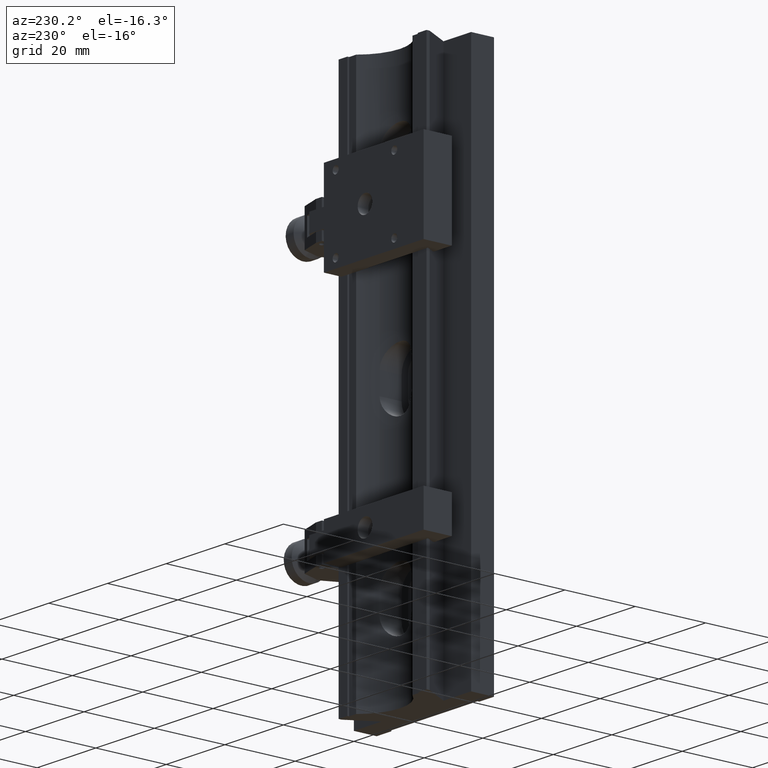
[diagram: clean part render]
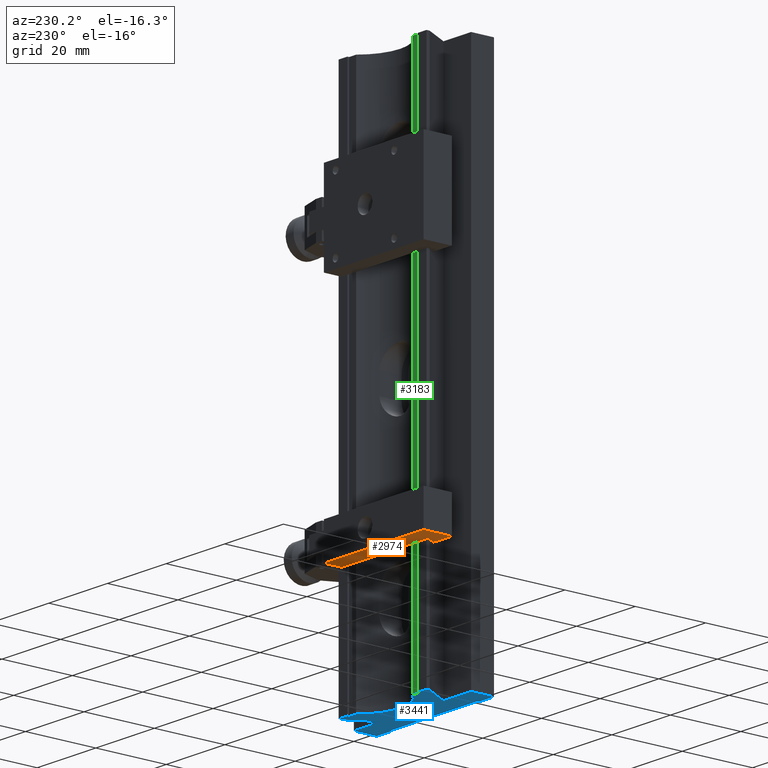
[diagram: same view with three faces highlighted in distinct colors, each labeled with its STEP entity id]
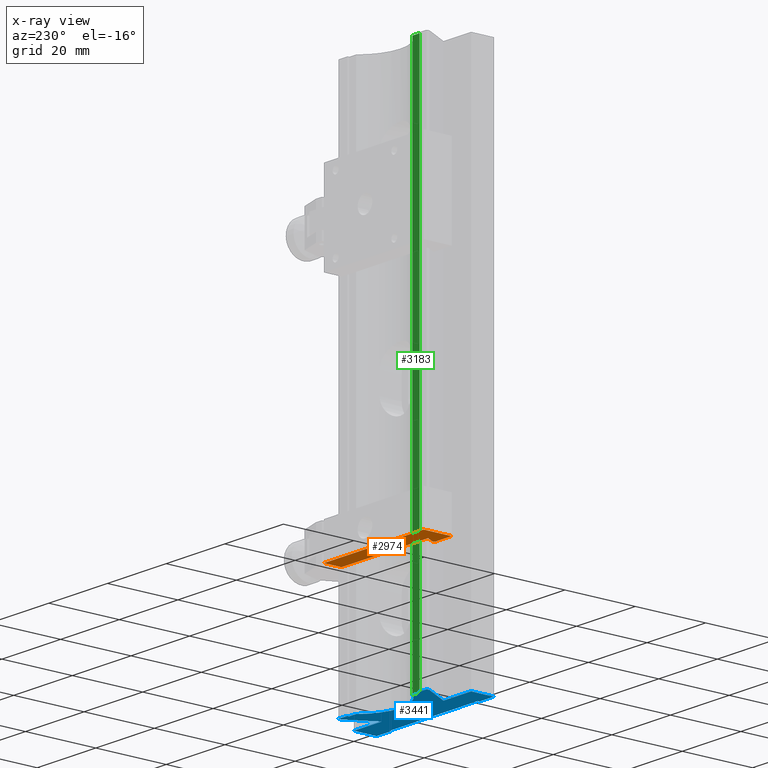
[diagram: x-ray of the same camera — body ghosted, the three highlighted faces saturated]
A machine part, auxiliary view with three faces highlighted in distinct colors.
The next image is the same camera in x-ray (body ghosted, the three faces saturated) — at least one of them is partly hidden behind the body in this view.
Their STEP definitions:

[orange] entity #2974 — the highlighted planar face has unit normal (-0, 0, 1).
#76 = CARTESIAN_POINT ( 'NONE',  ( -13.95096189432331890, 5.816987298107782145, -40.72750728490122896 ) ) ;
#150 = CARTESIAN_POINT ( 'NONE',  ( 14.00000000000000711, 13.50000000000000888, -40.72750728490122896 ) ) ;
#168 = AXIS2_PLACEMENT_3D ( 'NONE', #332, #267, #4722 ) ;
#267 = DIRECTION ( 'NONE',  ( -0.000000000000000000, 0.000000000000000000, 1.000000000000000000 ) ) ;
#332 = CARTESIAN_POINT ( 'NONE',  ( 3.469446951953614189E-15, 8.500000000000007105, -40.72750728490122896 ) ) ;
#451 = ORIENTED_EDGE ( 'NONE', *, *, #1555, .F. ) ;
#488 = CARTESIAN_POINT ( 'NONE',  ( -14.26794919243109483, 5.500000000000007105, -40.72750728490122896 ) ) ;
#491 = LINE ( 'NONE', #1761, #2238 ) ;
#680 = LINE ( 'NONE', #4084, #2462 ) ;
#711 = CARTESIAN_POINT ( 'NONE',  ( 14.00000000000000888, 8.500000000000007105, -40.72750728490122896 ) ) ;
#853 = ORIENTED_EDGE ( 'NONE', *, *, #3116, .T. ) ;
#893 = CARTESIAN_POINT ( 'NONE',  ( -20.00000000000000711, 5.500000000000007105, -40.72750728490122896 ) ) ;
#994 = LINE ( 'NONE', #1785, #3203 ) ;
#1056 = VERTEX_POINT ( 'NONE', #488 ) ;
#1063 = EDGE_CURVE ( 'NONE', #2368, #1427, #994, .T. ) ;
#1175 = DIRECTION ( 'NONE',  ( 1.000000000000000000, 1.242535447991765058E-32, 0.000000000000000000 ) ) ;
#1178 = ORIENTED_EDGE ( 'NONE', *, *, #4320, .F. ) ;
#1248 = ORIENTED_EDGE ( 'NONE', *, *, #3153, .F. ) ;
#1322 = DIRECTION ( 'NONE',  ( -0.5000000000000041078, 0.8660254037844363761, 0.000000000000000000 ) ) ;
#1351 = EDGE_LOOP ( 'NONE', ( #3448, #4074, #451, #853, #1178, #1248, #1641 ) ) ;
#1404 = EDGE_CURVE ( 'NONE', #2557, #1877, #4339, .T. ) ;
#1427 = VERTEX_POINT ( 'NONE', #3793 ) ;
#1453 = VECTOR ( 'NONE', #4205, 1000.000000000000114 ) ;
#1555 = EDGE_CURVE ( 'NONE', #3657, #2557, #491, .T. ) ;
#1576 = VECTOR ( 'NONE', #4330, 1000.000000000000000 ) ;
#1635 = LINE ( 'NONE', #2944, #1453 ) ;
#1638 = VERTEX_POINT ( 'NONE', #893 ) ;
#1641 = ORIENTED_EDGE ( 'NONE', *, *, #1063, .F. ) ;
#1737 = EDGE_CURVE ( 'NONE', #2368, #1877, #4963, .T. ) ;
#1761 = CARTESIAN_POINT ( 'NONE',  ( -13.76794919243110016, 5.500000000000007105, -40.72750728490122896 ) ) ;
#1785 = CARTESIAN_POINT ( 'NONE',  ( -20.00000000000000711, 13.50000000000000888, -40.72750728490122896 ) ) ;
#1877 = VERTEX_POINT ( 'NONE', #711 ) ;
#2121 = LINE ( 'NONE', #4699, #1576 ) ;
#2238 = VECTOR ( 'NONE', #1322, 1000.000000000000000 ) ;
#2249 = VECTOR ( 'NONE', #3633, 1000.000000000000000 ) ;
#2368 = VERTEX_POINT ( 'NONE', #4482 ) ;
#2462 = VECTOR ( 'NONE', #3648, 1000.000000000000000 ) ;
#2510 = VECTOR ( 'NONE', #1175, 1000.000000000000000 ) ;
#2557 = VERTEX_POINT ( 'NONE', #4370 ) ;
#2944 = CARTESIAN_POINT ( 'NONE',  ( -13.95096189432331890, 5.816987298107783033, -40.72750728490122896 ) ) ;
#2974 = ADVANCED_FACE ( 'NONE', ( #2992 ), #5552, .F. ) ;
#2992 = FACE_OUTER_BOUND ( 'NONE', #1351, .T. ) ;
#3116 = EDGE_CURVE ( 'NONE', #3657, #1056, #1635, .T. ) ;
#3153 = EDGE_CURVE ( 'NONE', #1427, #1638, #680, .T. ) ;
#3203 = VECTOR ( 'NONE', #4469, 1000.000000000000000 ) ;
#3448 = ORIENTED_EDGE ( 'NONE', *, *, #1737, .T. ) ;
#3633 = DIRECTION ( 'NONE',  ( 1.170338304741205908E-16, -1.000000000000000000, 0.000000000000000000 ) ) ;
#3648 = DIRECTION ( 'NONE',  ( 0.000000000000000000, -1.000000000000000000, 0.000000000000000000 ) ) ;
#3657 = VERTEX_POINT ( 'NONE', #76 ) ;
#3793 = CARTESIAN_POINT ( 'NONE',  ( -20.00000000000000711, 13.50000000000000888, -40.72750728490122896 ) ) ;
#4074 = ORIENTED_EDGE ( 'NONE', *, *, #1404, .F. ) ;
#4084 = CARTESIAN_POINT ( 'NONE',  ( -20.00000000000000711, 13.50000000000000888, -40.72750728490122896 ) ) ;
#4205 = DIRECTION ( 'NONE',  ( -0.7071067811865474617, -0.7071067811865474617, -0.000000000000000000 ) ) ;
#4320 = EDGE_CURVE ( 'NONE', #1638, #1056, #2121, .T. ) ;
#4330 = DIRECTION ( 'NONE',  ( 1.000000000000000000, 0.000000000000000000, 0.000000000000000000 ) ) ;
#4339 = LINE ( 'NONE', #5137, #2510 ) ;
#4370 = CARTESIAN_POINT ( 'NONE',  ( -15.49999999999999645, 8.500000000000007105, -40.72750728490122896 ) ) ;
#4469 = DIRECTION ( 'NONE',  ( -1.000000000000000000, -0.000000000000000000, -0.000000000000000000 ) ) ;
#4482 = CARTESIAN_POINT ( 'NONE',  ( 14.00000000000000711, 13.50000000000000888, -40.72750728490122896 ) ) ;
#4699 = CARTESIAN_POINT ( 'NONE',  ( -20.00000000000000711, 5.500000000000007105, -40.72750728490122896 ) ) ;
#4722 = DIRECTION ( 'NONE',  ( 1.000000000000000000, 0.000000000000000000, 0.000000000000000000 ) ) ;
#4963 = LINE ( 'NONE', #150, #2249 ) ;
#5137 = CARTESIAN_POINT ( 'NONE',  ( -15.49999999999999645, 8.500000000000007105, -40.72750728490122896 ) ) ;
#5552 = PLANE ( 'NONE',  #168 ) ;

[blue] entity #3441 — the highlighted planar face has unit normal (0, 0, 1).
#25 = EDGE_CURVE ( 'NONE', #3292, #1034, #1446, .T. ) ;
#33 = VERTEX_POINT ( 'NONE', #1018 ) ;
#52 = VECTOR ( 'NONE', #3385, 1000.000000000000000 ) ;
#105 = VECTOR ( 'NONE', #1817, 1000.000000000000000 ) ;
#136 = CARTESIAN_POINT ( 'NONE',  ( -14.99999999999999822, 7.633974596215571395, -75.00000000000002842 ) ) ;
#149 = VERTEX_POINT ( 'NONE', #3027 ) ;
#154 = EDGE_CURVE ( 'NONE', #1066, #4923, #5124, .T. ) ;
#272 = AXIS2_PLACEMENT_3D ( 'NONE', #3890, #5639, #5236 ) ;
#299 = DIRECTION ( 'NONE',  ( 1.000000000000000000, 1.301042606982605321E-16, 0.000000000000000000 ) ) ;
#311 = DIRECTION ( 'NONE',  ( -1.000000000000000000, -1.445602896647339163E-16, 0.000000000000000000 ) ) ;
#336 = ORIENTED_EDGE ( 'NONE', *, *, #2422, .F. ) ;
#353 = EDGE_CURVE ( 'NONE', #3270, #4202, #1788, .T. ) ;
#381 = CARTESIAN_POINT ( 'NONE',  ( -20.00000000000000000, -0.000000000000000000, -75.00000000000000000 ) ) ;
#432 = ORIENTED_EDGE ( 'NONE', *, *, #3925, .F. ) ;
#467 = EDGE_CURVE ( 'NONE', #3798, #4281, #2763, .T. ) ;
#485 = VERTEX_POINT ( 'NONE', #1385 ) ;
#584 = VECTOR ( 'NONE', #3562, 1000.000000000000000 ) ;
#672 = DIRECTION ( 'NONE',  ( 0.000000000000000000, 1.000000000000000000, 0.000000000000000000 ) ) ;
#679 = VECTOR ( 'NONE', #4019, 1000.000000000000000 ) ;
#716 = CARTESIAN_POINT ( 'NONE',  ( 9.157674552523589243E-16, 8.000000000000000000, -75.00000000000000000 ) ) ;
#763 = DIRECTION ( 'NONE',  ( 1.000000000000000000, 0.000000000000000000, 0.000000000000000000 ) ) ;
#855 = CARTESIAN_POINT ( 'NONE',  ( -2.407148620655123076E-16, 16.00000000000000000, -75.00000000000000000 ) ) ;
#862 = VERTEX_POINT ( 'NONE', #1460 ) ;
#927 = ORIENTED_EDGE ( 'NONE', *, *, #2834, .F. ) ;
#941 = ORIENTED_EDGE ( 'NONE', *, *, #5118, .F. ) ;
#993 = ORIENTED_EDGE ( 'NONE', *, *, #154, .F. ) ;
#1018 = CARTESIAN_POINT ( 'NONE',  ( 14.99999999999999822, 8.500000000000003553, -75.00000000000002842 ) ) ;
#1034 = VERTEX_POINT ( 'NONE', #4736 ) ;
#1044 = CARTESIAN_POINT ( 'NONE',  ( 15.00000000000000711, 16.00000000000000000, -75.00000000000000000 ) ) ;
#1060 = VERTEX_POINT ( 'NONE', #4925 ) ;
#1066 = VERTEX_POINT ( 'NONE', #4414 ) ;
#1100 = LINE ( 'NONE', #1044, #3496 ) ;
#1106 = VECTOR ( 'NONE', #299, 1000.000000000000000 ) ;
#1148 = CARTESIAN_POINT ( 'NONE',  ( 15.00000000000000000, 14.43276648600719270, -75.00000000000002842 ) ) ;
#1214 = CARTESIAN_POINT ( 'NONE',  ( -15.00000000000000000, 14.43276648600719270, -75.00000000000002842 ) ) ;
#1216 = LINE ( 'NONE', #2966, #1938 ) ;
#1218 = ORIENTED_EDGE ( 'NONE', *, *, #3824, .T. ) ;
#1228 = ORIENTED_EDGE ( 'NONE', *, *, #5242, .T. ) ;
#1251 = ORIENTED_EDGE ( 'NONE', *, *, #3768, .F. ) ;
#1258 = DIRECTION ( 'NONE',  ( -1.000000000000000000, 0.000000000000000000, -0.000000000000000000 ) ) ;
#1292 = DIRECTION ( 'NONE',  ( 0.5000000000000042188, -0.8660254037844362651, 0.000000000000000000 ) ) ;
#1295 = VERTEX_POINT ( 'NONE', #3671 ) ;
#1354 = CARTESIAN_POINT ( 'NONE',  ( 12.00000000000003020, 8.000000000000001776, -75.00000000000000000 ) ) ;
#1360 = VERTEX_POINT ( 'NONE', #2531 ) ;
#1385 = CARTESIAN_POINT ( 'NONE',  ( -12.00000000000001421, 7.999999999999998224, -75.00000000000001421 ) ) ;
#1403 = LINE ( 'NONE', #5283, #679 ) ;
#1430 = ORIENTED_EDGE ( 'NONE', *, *, #353, .F. ) ;
#1446 = LINE ( 'NONE', #4950, #5401 ) ;
#1460 = CARTESIAN_POINT ( 'NONE',  ( -19.99999999999999645, -6.499999999999999112, -75.00000000000000000 ) ) ;
#1525 = CARTESIAN_POINT ( 'NONE',  ( -14.99999999999999645, 8.500000000000015987, -75.00000000000002842 ) ) ;
#1578 = LINE ( 'NONE', #4639, #4678 ) ;
#1609 = CARTESIAN_POINT ( 'NONE',  ( -15.50000000000000000, 8.500000000000000000, -75.00000000000000000 ) ) ;
#1679 = VECTOR ( 'NONE', #3903, 1000.000000000000114 ) ;
#1788 = LINE ( 'NONE', #4798, #2962 ) ;
#1817 = DIRECTION ( 'NONE',  ( 2.101878407556361439E-16, -1.000000000000000000, 0.000000000000000000 ) ) ;
#1923 = EDGE_CURVE ( 'NONE', #149, #5463, #4732, .T. ) ;
#1928 = CARTESIAN_POINT ( 'NONE',  ( 20.00000000000000000, 4.898587196589413026E-15, -75.00000000000000000 ) ) ;
#1938 = VECTOR ( 'NONE', #763, 1000.000000000000000 ) ;
#1969 = VECTOR ( 'NONE', #1258, 1000.000000000000000 ) ;
#2185 = VECTOR ( 'NONE', #2437, 1000.000000000000000 ) ;
#2193 = PLANE ( 'NONE',  #272 ) ;
#2206 = ORIENTED_EDGE ( 'NONE', *, *, #2933, .T. ) ;
#2250 = LINE ( 'NONE', #4885, #105 ) ;
#2263 = DIRECTION ( 'NONE',  ( 1.000000000000000000, 1.301042606982605321E-16, 0.000000000000000000 ) ) ;
#2422 = EDGE_CURVE ( 'NONE', #862, #1060, #2469, .T. ) ;
#2437 = DIRECTION ( 'NONE',  ( -1.000000000000000000, -1.445602896647339163E-16, 0.000000000000000000 ) ) ;
#2439 = DIRECTION ( 'NONE',  ( -1.000000000000000000, 0.000000000000000000, -0.000000000000000000 ) ) ;
#2469 = LINE ( 'NONE', #4224, #1106 ) ;
#2499 = DIRECTION ( 'NONE',  ( 5.337610695313253357E-16, -1.000000000000000000, 0.000000000000000000 ) ) ;
#2530 = LINE ( 'NONE', #5168, #4407 ) ;
#2531 = CARTESIAN_POINT ( 'NONE',  ( 15.00000000000000000, 7.633974596215576724, -75.00000000000000000 ) ) ;
#2546 = LINE ( 'NONE', #5067, #1679 ) ;
#2631 = ORIENTED_EDGE ( 'NONE', *, *, #3620, .T. ) ;
#2633 = LINE ( 'NONE', #3174, #3707 ) ;
#2653 = AXIS2_PLACEMENT_3D ( 'NONE', #855, #4786, #5583 ) ;
#2759 = VECTOR ( 'NONE', #5515, 1000.000000000000000 ) ;
#2763 = LINE ( 'NONE', #3645, #584 ) ;
#2771 = DIRECTION ( 'NONE',  ( -2.101878407556361439E-16, 1.000000000000000000, 0.000000000000000000 ) ) ;
#2775 = CARTESIAN_POINT ( 'NONE',  ( -10.59252271188812422, -0.000000000000000000, -75.00000000000000000 ) ) ;
#2776 = ORIENTED_EDGE ( 'NONE', *, *, #4773, .F. ) ;
#2834 = EDGE_CURVE ( 'NONE', #4923, #485, #2863, .T. ) ;
#2863 = LINE ( 'NONE', #716, #2185 ) ;
#2894 = LINE ( 'NONE', #4566, #3579 ) ;
#2908 = VERTEX_POINT ( 'NONE', #5595 ) ;
#2933 = EDGE_CURVE ( 'NONE', #3270, #5463, #4656, .T. ) ;
#2962 = VECTOR ( 'NONE', #1292, 1000.000000000000114 ) ;
#2966 = CARTESIAN_POINT ( 'NONE',  ( -2.407148620655123076E-16, -5.999999999999998224, -75.00000000000000000 ) ) ;
#3027 = CARTESIAN_POINT ( 'NONE',  ( -12.00000000000001421, 8.499999999999998224, -75.00000000000001421 ) ) ;
#3051 = EDGE_CURVE ( 'NONE', #3292, #1066, #1578, .T. ) ;
#3174 = CARTESIAN_POINT ( 'NONE',  ( -19.99999999999999645, -6.499999999999999112, -75.00000000000000000 ) ) ;
#3240 = ORIENTED_EDGE ( 'NONE', *, *, #5664, .F. ) ;
#3270 = VERTEX_POINT ( 'NONE', #136 ) ;
#3292 = VERTEX_POINT ( 'NONE', #1354 ) ;
#3336 = FACE_OUTER_BOUND ( 'NONE', #4672, .T. ) ;
#3385 = DIRECTION ( 'NONE',  ( -5.337610695313253357E-16, 1.000000000000000000, 0.000000000000000000 ) ) ;
#3441 = ADVANCED_FACE ( 'NONE', ( #3336 ), #2193, .F. ) ;
#3496 = VECTOR ( 'NONE', #672, 1000.000000000000000 ) ;
#3555 = CARTESIAN_POINT ( 'NONE',  ( 10.00000000000000000, 8.500000000000001776, -75.00000000000000000 ) ) ;
#3562 = DIRECTION ( 'NONE',  ( -1.000000000000000000, -2.449293598294706414E-16, 0.000000000000000000 ) ) ;
#3579 = VECTOR ( 'NONE', #2439, 1000.000000000000000 ) ;
#3620 = EDGE_CURVE ( 'NONE', #149, #485, #2250, .T. ) ;
#3645 = CARTESIAN_POINT ( 'NONE',  ( 20.00000000000000000, 4.898587196589413026E-15, -75.00000000000000000 ) ) ;
#3671 = CARTESIAN_POINT ( 'NONE',  ( -15.00000000000003730, -5.999999999999998224, -75.00000000000000000 ) ) ;
#3707 = VECTOR ( 'NONE', #2263, 1000.000000000000000 ) ;
#3768 = EDGE_CURVE ( 'NONE', #4202, #5186, #2894, .T. ) ;
#3798 = VERTEX_POINT ( 'NONE', #1928 ) ;
#3824 = EDGE_CURVE ( 'NONE', #33, #1360, #4188, .T. ) ;
#3851 = ORIENTED_EDGE ( 'NONE', *, *, #3051, .F. ) ;
#3890 = CARTESIAN_POINT ( 'NONE',  ( -2.407148620655123076E-16, 16.00000000000000000, -75.00000000000000000 ) ) ;
#3903 = DIRECTION ( 'NONE',  ( 0.5000000000000038858, 0.8660254037844363761, 0.000000000000000000 ) ) ;
#3913 = CARTESIAN_POINT ( 'NONE',  ( 20.00000000000000355, -6.499999999999993783, -75.00000000000000000 ) ) ;
#3925 = EDGE_CURVE ( 'NONE', #5186, #862, #2530, .T. ) ;
#3936 = LINE ( 'NONE', #3913, #52 ) ;
#3993 = DIRECTION ( 'NONE',  ( -1.000000000000000000, -3.154042683594195121E-16, 0.000000000000000000 ) ) ;
#4019 = DIRECTION ( 'NONE',  ( 0.000000000000000000, -1.000000000000000000, 0.000000000000000000 ) ) ;
#4025 = VERTEX_POINT ( 'NONE', #4847 ) ;
#4108 = ORIENTED_EDGE ( 'NONE', *, *, #5272, .F. ) ;
#4188 = LINE ( 'NONE', #1148, #2759 ) ;
#4202 = VERTEX_POINT ( 'NONE', #2775 ) ;
#4224 = CARTESIAN_POINT ( 'NONE',  ( -19.99999999999999645, -6.499999999999999112, -75.00000000000000000 ) ) ;
#4252 = ORIENTED_EDGE ( 'NONE', *, *, #1923, .F. ) ;
#4256 = VECTOR ( 'NONE', #3993, 1000.000000000000000 ) ;
#4281 = VERTEX_POINT ( 'NONE', #5588 ) ;
#4291 = EDGE_CURVE ( 'NONE', #4281, #1360, #2546, .T. ) ;
#4407 = VECTOR ( 'NONE', #2499, 1000.000000000000000 ) ;
#4414 = CARTESIAN_POINT ( 'NONE',  ( 9.604686356149276349, 8.000000000000001776, -75.00000000000000000 ) ) ;
#4525 = EDGE_CURVE ( 'NONE', #5363, #4025, #1100, .T. ) ;
#4566 = CARTESIAN_POINT ( 'NONE',  ( -20.00000000000000000, -0.000000000000000000, -75.00000000000000000 ) ) ;
#4639 = CARTESIAN_POINT ( 'NONE',  ( 9.157674552523589243E-16, 8.000000000000000000, -75.00000000000000000 ) ) ;
#4652 = VECTOR ( 'NONE', #5181, 1000.000000000000000 ) ;
#4656 = LINE ( 'NONE', #1214, #4652 ) ;
#4672 = EDGE_LOOP ( 'NONE', ( #4108, #1218, #5584, #5499, #941, #3240, #5302, #2776, #1228, #336, #432, #1251, #1430, #2206, #4252, #2631, #927, #993, #3851, #4991 ) ) ;
#4678 = VECTOR ( 'NONE', #311, 1000.000000000000000 ) ;
#4732 = LINE ( 'NONE', #1609, #1969 ) ;
#4736 = CARTESIAN_POINT ( 'NONE',  ( 11.99999999999998579, 8.500000000000001776, -75.00000000000001421 ) ) ;
#4773 = EDGE_CURVE ( 'NONE', #1295, #4025, #1216, .T. ) ;
#4786 = DIRECTION ( 'NONE',  ( -0.000000000000000000, 0.000000000000000000, -1.000000000000000000 ) ) ;
#4798 = CARTESIAN_POINT ( 'NONE',  ( -10.59252271188812422, -0.000000000000000000, -75.00000000000000000 ) ) ;
#4847 = CARTESIAN_POINT ( 'NONE',  ( 15.00000000000000711, -5.999999999999996447, -75.00000000000001421 ) ) ;
#4885 = CARTESIAN_POINT ( 'NONE',  ( -12.00000000000001599, 15.99999999999999645, -75.00000000000000000 ) ) ;
#4923 = VERTEX_POINT ( 'NONE', #5404 ) ;
#4925 = CARTESIAN_POINT ( 'NONE',  ( -14.99999999999999289, -6.499999999999996447, -75.00000000000001421 ) ) ;
#4950 = CARTESIAN_POINT ( 'NONE',  ( 11.99999999999998401, 16.00000000000000355, -75.00000000000000000 ) ) ;
#4991 = ORIENTED_EDGE ( 'NONE', *, *, #25, .T. ) ;
#5067 = CARTESIAN_POINT ( 'NONE',  ( 10.59252271188812777, 2.594419806801887381E-15, -75.00000000000000000 ) ) ;
#5118 = EDGE_CURVE ( 'NONE', #2908, #3798, #3936, .T. ) ;
#5124 = CIRCLE ( 'NONE', #2653, 12.50000000000000000 ) ;
#5168 = CARTESIAN_POINT ( 'NONE',  ( -19.99999999999999645, -6.499999999999999112, -75.00000000000000000 ) ) ;
#5181 = DIRECTION ( 'NONE',  ( -1.717114570520703492E-16, 1.000000000000000000, -0.000000000000000000 ) ) ;
#5186 = VERTEX_POINT ( 'NONE', #381 ) ;
#5236 = DIRECTION ( 'NONE',  ( 0.000000000000000000, -1.000000000000000000, 0.000000000000000000 ) ) ;
#5242 = EDGE_CURVE ( 'NONE', #1295, #1060, #1403, .T. ) ;
#5272 = EDGE_CURVE ( 'NONE', #33, #1034, #5365, .T. ) ;
#5283 = CARTESIAN_POINT ( 'NONE',  ( -14.99999999999999289, 16.00000000000000000, -75.00000000000000000 ) ) ;
#5302 = ORIENTED_EDGE ( 'NONE', *, *, #4525, .T. ) ;
#5363 = VERTEX_POINT ( 'NONE', #5506 ) ;
#5365 = LINE ( 'NONE', #3555, #4256 ) ;
#5401 = VECTOR ( 'NONE', #2771, 1000.000000000000000 ) ;
#5404 = CARTESIAN_POINT ( 'NONE',  ( -9.604686356149272797, 7.999999999999998224, -75.00000000000000000 ) ) ;
#5463 = VERTEX_POINT ( 'NONE', #1525 ) ;
#5499 = ORIENTED_EDGE ( 'NONE', *, *, #467, .F. ) ;
#5506 = CARTESIAN_POINT ( 'NONE',  ( 15.00000000000000711, -6.499999999999996447, -75.00000000000001421 ) ) ;
#5515 = DIRECTION ( 'NONE',  ( -1.717114570520703492E-16, -1.000000000000000000, 0.000000000000000000 ) ) ;
#5583 = DIRECTION ( 'NONE',  ( 0.000000000000000000, -1.000000000000000000, 0.000000000000000000 ) ) ;
#5584 = ORIENTED_EDGE ( 'NONE', *, *, #4291, .F. ) ;
#5588 = CARTESIAN_POINT ( 'NONE',  ( 10.59252271188812777, 2.594419806801887381E-15, -75.00000000000000000 ) ) ;
#5595 = CARTESIAN_POINT ( 'NONE',  ( 20.00000000000000355, -6.499999999999993783, -75.00000000000000000 ) ) ;
#5639 = DIRECTION ( 'NONE',  ( 0.000000000000000000, 0.000000000000000000, 1.000000000000000000 ) ) ;
#5664 = EDGE_CURVE ( 'NONE', #5363, #2908, #2633, .T. ) ;

[green] entity #3183 — the highlighted planar face has unit normal (-0, 1, 0).
#139 = VECTOR ( 'NONE', #5163, 1000.000000000000000 ) ;
#485 = VERTEX_POINT ( 'NONE', #1385 ) ;
#515 = CARTESIAN_POINT ( 'NONE',  ( 9.157674552523589243E-16, 8.000000000000000000, 75.00000000000000000 ) ) ;
#716 = CARTESIAN_POINT ( 'NONE',  ( 9.157674552523589243E-16, 8.000000000000000000, -75.00000000000000000 ) ) ;
#726 = AXIS2_PLACEMENT_3D ( 'NONE', #2227, #1442, #902 ) ;
#779 = ORIENTED_EDGE ( 'NONE', *, *, #1085, .F. ) ;
#787 = ORIENTED_EDGE ( 'NONE', *, *, #5508, .T. ) ;
#818 = EDGE_CURVE ( 'NONE', #485, #3745, #2673, .T. ) ;
#902 = DIRECTION ( 'NONE',  ( -1.000000000000000000, -1.445602896647339163E-16, 0.000000000000000000 ) ) ;
#1085 = EDGE_CURVE ( 'NONE', #1973, #3745, #2239, .T. ) ;
#1179 = VECTOR ( 'NONE', #5368, 1000.000000000000000 ) ;
#1215 = ORIENTED_EDGE ( 'NONE', *, *, #818, .T. ) ;
#1385 = CARTESIAN_POINT ( 'NONE',  ( -12.00000000000001421, 7.999999999999998224, -75.00000000000001421 ) ) ;
#1442 = DIRECTION ( 'NONE',  ( -1.445602896647339163E-16, 1.000000000000000000, 1.766128869543160699E-32 ) ) ;
#1973 = VERTEX_POINT ( 'NONE', #3519 ) ;
#2185 = VECTOR ( 'NONE', #2437, 1000.000000000000000 ) ;
#2227 = CARTESIAN_POINT ( 'NONE',  ( -1.123668541772420414E-15, 8.000000000000000000, 1.501209539111686635E-31 ) ) ;
#2239 = LINE ( 'NONE', #515, #5227 ) ;
#2266 = DIRECTION ( 'NONE',  ( -1.000000000000000000, -1.445602896647339163E-16, 0.000000000000000000 ) ) ;
#2300 = CARTESIAN_POINT ( 'NONE',  ( -11.99999999999997158, 7.999999999999998224, 283.9794224532299154 ) ) ;
#2437 = DIRECTION ( 'NONE',  ( -1.000000000000000000, -1.445602896647339163E-16, 0.000000000000000000 ) ) ;
#2467 = ORIENTED_EDGE ( 'NONE', *, *, #2834, .T. ) ;
#2673 = LINE ( 'NONE', #2300, #1179 ) ;
#2834 = EDGE_CURVE ( 'NONE', #4923, #485, #2863, .T. ) ;
#2863 = LINE ( 'NONE', #716, #2185 ) ;
#2969 = EDGE_LOOP ( 'NONE', ( #787, #2467, #1215, #779 ) ) ;
#3168 = PLANE ( 'NONE',  #726 ) ;
#3183 = ADVANCED_FACE ( 'NONE', ( #3623 ), #3168, .T. ) ;
#3519 = CARTESIAN_POINT ( 'NONE',  ( -9.604686356149272797, 7.999999999999998224, 75.00000000000000000 ) ) ;
#3623 = FACE_OUTER_BOUND ( 'NONE', #2969, .T. ) ;
#3745 = VERTEX_POINT ( 'NONE', #5483 ) ;
#3814 = LINE ( 'NONE', #5217, #139 ) ;
#4923 = VERTEX_POINT ( 'NONE', #5404 ) ;
#5163 = DIRECTION ( 'NONE',  ( -0.000000000000000000, 0.000000000000000000, -1.000000000000000000 ) ) ;
#5217 = CARTESIAN_POINT ( 'NONE',  ( -9.604686356149272797, 7.999999999999998224, 75.00000000000000000 ) ) ;
#5227 = VECTOR ( 'NONE', #2266, 1000.000000000000000 ) ;
#5368 = DIRECTION ( 'NONE',  ( 1.221724772161974472E-16, 0.000000000000000000, 1.000000000000000000 ) ) ;
#5404 = CARTESIAN_POINT ( 'NONE',  ( -9.604686356149272797, 7.999999999999998224, -75.00000000000000000 ) ) ;
#5483 = CARTESIAN_POINT ( 'NONE',  ( -11.99999999999999645, 7.999999999999998224, 75.00000000000001421 ) ) ;
#5508 = EDGE_CURVE ( 'NONE', #1973, #4923, #3814, .T. ) ;